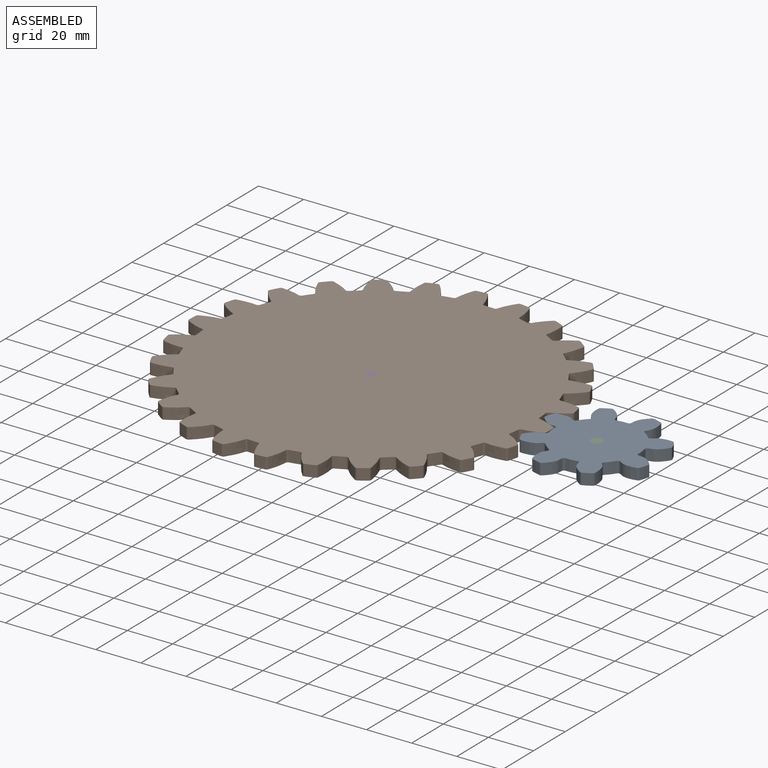
[diagram: assembled view]
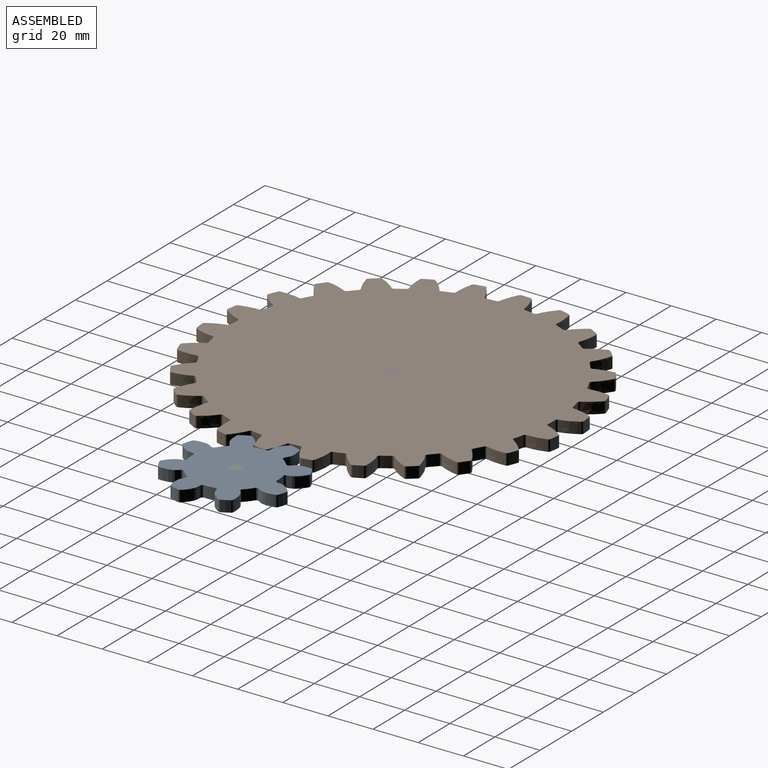
[diagram: assembled view, second angle]
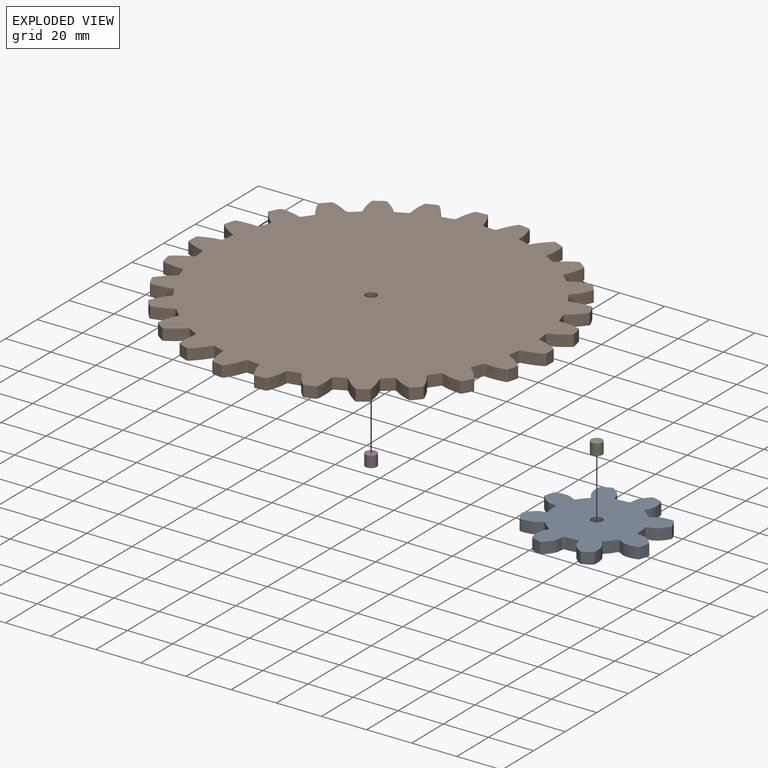
[diagram: exploded view]
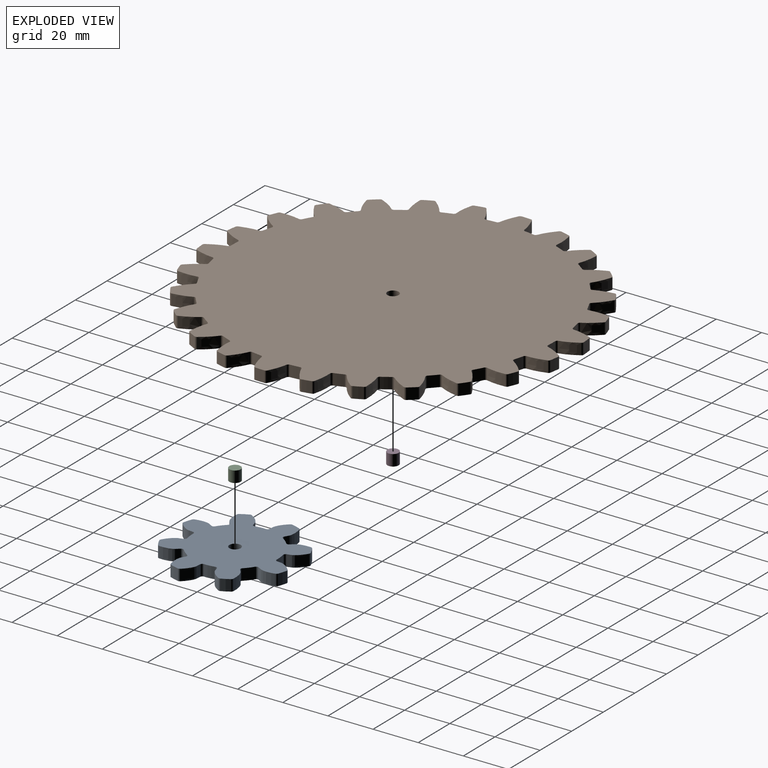
[diagram: exploded view, second angle]
ASSEMBLY  parts=4 mates=2
PART A: 91 faces, bbox 55.6x55.6x5 mm
  f0: plane 5x2.02mm, normal (0.02,1,0), area 10.1mm2, adj f1,f4,f5,f12
  f1: extruded ~5.69x5mm, area 33mm2, adj f0,f4,f5,f11
  f2: plane 5x1.93mm, normal (-0.99,-0.15,0), area 9.8mm2, adj f4,f5,f11,f19
  f3: cylinder r=18.83mm len=5mm, axis (0,0,-1), area 23.7mm2, adj f4,f5,f10,f12
  f4: plane 55.6x55.6mm, normal (0,0,1), area 1704.5mm2, adj f0,f1,f2,f3,f6,f7,f8,f9
  f5: plane 55.6x55.6mm, normal (0,0,-1), area 1704.5mm2, adj f0,f1,f2,f3,f6,f7,f8,f9
  f6: plane 5x1.88mm, normal (-0.36,-0.93,0), area 10.1mm2, adj f4,f5,f7,f10
  f7: extruded ~5.06x5mm, area 33mm2, adj f4,f5,f6,f9
  f8: plane 5x1.67mm, normal (-0.86,0.52,0), area 9.8mm2, adj f4,f5,f9,f81
  f9: cylinder r=1mm len=5mm, axis (0,0,-1), area 4.7mm2, adj f4,f5,f7,f8
  f10: cylinder r=1mm len=5mm, axis (0,0,-1), area 7.6mm2, adj f3,f4,f5,f6
  f11: cylinder r=1mm len=5mm, axis (0,0,-1), area 4.7mm2, adj f1,f2,f4,f5
  f12: cylinder r=1mm len=5mm, axis (0,0,-1), area 7.6mm2, adj f0,f3,f4,f5
  f13: plane 5x1.46mm, normal (-0.69,0.72,0), area 10.1mm2, adj f4,f5,f14,f23
  f14: extruded ~6.22x5mm, area 33mm2, adj f4,f5,f13,f22
  f15: plane 5x1.57mm, normal (-0.59,-0.81,0), area 9.8mm2, adj f4,f5,f22,f30
  f16: cylinder r=18.83mm len=5mm, axis (0,0,-1), area 23.7mm2, adj f4,f5,f21,f23
  f17: plane 5x1.85mm, normal (0.4,-0.92,0), area 10.1mm2, adj f4,f5,f18,f21
  f18: extruded ~6.45x5mm, area 33mm2, adj f4,f5,f17,f20
  f19: plane 5x1.9mm, normal (-0.97,-0.24,0), area 9.8mm2, adj f2,f4,f5,f20
  f20: cylinder r=1mm len=5mm, axis (0,0,-1), area 4.7mm2, adj f4,f5,f18,f19
  f21: cylinder r=1mm len=5mm, axis (0,0,-1), area 7.6mm2, adj f4,f5,f16,f17
  f22: cylinder r=1mm len=5mm, axis (0,0,-1), area 4.7mm2, adj f4,f5,f14,f15
  f23: cylinder r=1mm len=5mm, axis (0,0,-1), area 7.6mm2, adj f4,f5,f13,f16
  f24: plane 5x2.02mm, normal (-1,0.02,0), area 10.1mm2, adj f4,f5,f25,f34
  f25: extruded ~5.69x5mm, area 33mm2, adj f4,f5,f24,f33
  f26: plane 5x1.93mm, normal (0.15,-0.99,0), area 9.8mm2, adj f4,f5,f33,f41
  f27: cylinder r=18.83mm len=5mm, axis (0,0,-1), area 23.7mm2, adj f4,f5,f32,f34
  f28: plane 5x1.88mm, normal (0.93,-0.36,0), area 10.1mm2, adj f4,f5,f29,f32
  f29: extruded ~5.06x5mm, area 33mm2, adj f4,f5,f28,f31
  f30: plane 5x1.67mm, normal (-0.52,-0.86,0), area 9.8mm2, adj f4,f5,f15,f31
  f31: cylinder r=1mm len=5mm, axis (0,0,-1), area 4.7mm2, adj f4,f5,f29,f30
  f32: cylinder r=1mm len=5mm, axis (0,0,-1), area 7.6mm2, adj f4,f5,f27,f28
  f33: cylinder r=1mm len=5mm, axis (0,0,-1), area 4.7mm2, adj f4,f5,f25,f26
  f34: cylinder r=1mm len=5mm, axis (0,0,-1), area 7.6mm2, adj f4,f5,f24,f27
  f35: plane 5x1.46mm, normal (-0.72,-0.69,0), area 10.1mm2, adj f4,f5,f36,f45
  f36: extruded ~6.22x5mm, area 33mm2, adj f4,f5,f35,f44
  f37: plane 5x1.57mm, normal (0.81,-0.59,0), area 9.8mm2, adj f4,f5,f44,f52
  f38: cylinder r=18.83mm len=5mm, axis (0,0,-1), area 23.7mm2, adj f4,f5,f43,f45
  f39: plane 5x1.85mm, normal (0.92,0.4,0), area 10.1mm2, adj f4,f5,f40,f43
  f40: extruded ~6.45x5mm, area 33mm2, adj f4,f5,f39,f42
  f41: plane 5x1.9mm, normal (0.24,-0.97,0), area 9.8mm2, adj f4,f5,f26,f42
  f42: cylinder r=1mm len=5mm, axis (0,0,-1), area 4.7mm2, adj f4,f5,f40,f41
  f43: cylinder r=1mm len=5mm, axis (0,0,-1), area 7.6mm2, adj f4,f5,f38,f39
  f44: cylinder r=1mm len=5mm, axis (0,0,-1), area 4.7mm2, adj f4,f5,f36,f37
  f45: cylinder r=1mm len=5mm, axis (0,0,-1), area 7.6mm2, adj f4,f5,f35,f38
  f46: plane 5x2.02mm, normal (-0.02,-1,0), area 10.1mm2, adj f4,f5,f47,f56
  f47: extruded ~5.69x5mm, area 33mm2, adj f4,f5,f46,f55
  f48: plane 5x1.93mm, normal (0.99,0.15,0), area 9.8mm2, adj f4,f5,f55,f63
  f49: cylinder r=18.83mm len=5mm, axis (0,0,-1), area 23.7mm2, adj f4,f5,f54,f56
  f50: plane 5x1.88mm, normal (0.36,0.93,0), area 10.1mm2, adj f4,f5,f51,f54
  f51: extruded ~5.06x5mm, area 33mm2, adj f4,f5,f50,f53
  f52: plane 5x1.67mm, normal (0.86,-0.52,0), area 9.8mm2, adj f4,f5,f37,f53
  f53: cylinder r=1mm len=5mm, axis (0,0,-1), area 4.7mm2, adj f4,f5,f51,f52
  f54: cylinder r=1mm len=5mm, axis (0,0,-1), area 7.6mm2, adj f4,f5,f49,f50
  f55: cylinder r=1mm len=5mm, axis (0,0,-1), area 4.7mm2, adj f4,f5,f47,f48
  f56: cylinder r=1mm len=5mm, axis (0,0,-1), area 7.6mm2, adj f4,f5,f46,f49
  f57: plane 5x1.46mm, normal (0.69,-0.72,0), area 10.1mm2, adj f4,f5,f58,f67
  f58: extruded ~6.22x5mm, area 33mm2, adj f4,f5,f57,f66
  f59: plane 5x1.57mm, normal (0.59,0.81,0), area 9.8mm2, adj f4,f5,f66,f74
  f60: cylinder r=18.83mm len=5mm, axis (0,0,-1), area 23.7mm2, adj f4,f5,f65,f67
  f61: plane 5x1.85mm, normal (-0.4,0.92,0), area 10.1mm2, adj f4,f5,f62,f65
  f62: extruded ~6.45x5mm, area 33mm2, adj f4,f5,f61,f64
  f63: plane 5x1.9mm, normal (0.97,0.24,0), area 9.8mm2, adj f4,f5,f48,f64
  f64: cylinder r=1mm len=5mm, axis (0,0,-1), area 4.7mm2, adj f4,f5,f62,f63
  f65: cylinder r=1mm len=5mm, axis (0,0,-1), area 7.6mm2, adj f4,f5,f60,f61
  f66: cylinder r=1mm len=5mm, axis (0,0,-1), area 4.7mm2, adj f4,f5,f58,f59
  f67: cylinder r=1mm len=5mm, axis (0,0,-1), area 7.6mm2, adj f4,f5,f57,f60
  f68: plane 5x2.02mm, normal (1,-0.02,0), area 10.1mm2, adj f4,f5,f69,f78
  f69: extruded ~5.69x5mm, area 33mm2, adj f4,f5,f68,f77
  f70: plane 5x1.93mm, normal (-0.15,0.99,0), area 9.8mm2, adj f4,f5,f77,f85
  f71: cylinder r=18.83mm len=5mm, axis (0,0,-1), area 23.7mm2, adj f4,f5,f76,f78
  f72: plane 5x1.88mm, normal (-0.93,0.36,0), area 10.1mm2, adj f4,f5,f73,f76
  f73: extruded ~5.06x5mm, area 33mm2, adj f4,f5,f72,f75
  f74: plane 5x1.67mm, normal (0.52,0.86,0), area 9.8mm2, adj f4,f5,f59,f75
  f75: cylinder r=1mm len=5mm, axis (0,0,-1), area 4.7mm2, adj f4,f5,f73,f74
  f76: cylinder r=1mm len=5mm, axis (0,0,-1), area 7.6mm2, adj f4,f5,f71,f72
  f77: cylinder r=1mm len=5mm, axis (0,0,-1), area 4.7mm2, adj f4,f5,f69,f70
  f78: cylinder r=1mm len=5mm, axis (0,0,-1), area 7.6mm2, adj f4,f5,f68,f71
  f79: plane 5x1.46mm, normal (0.72,0.69,0), area 10.1mm2, adj f4,f5,f80,f89
  f80: extruded ~6.22x5mm, area 33mm2, adj f4,f5,f79,f88
  f81: plane 5x1.57mm, normal (-0.81,0.59,0), area 9.8mm2, adj f4,f5,f8,f88
  f82: cylinder r=18.83mm len=5mm, axis (0,0,-1), area 23.7mm2, adj f4,f5,f87,f89
  f83: plane 5x1.85mm, normal (-0.92,-0.4,0), area 10.1mm2, adj f4,f5,f84,f87
  f84: extruded ~6.45x5mm, area 33mm2, adj f4,f5,f83,f86
  f85: plane 5x1.9mm, normal (-0.24,0.97,0), area 9.8mm2, adj f4,f5,f70,f86
  f86: cylinder r=1mm len=5mm, axis (0,0,-1), area 4.7mm2, adj f4,f5,f84,f85
  f87: cylinder r=1mm len=5mm, axis (0,0,-1), area 7.6mm2, adj f4,f5,f82,f83
  f88: cylinder r=1mm len=5mm, axis (0,0,-1), area 4.7mm2, adj f4,f5,f80,f81
  f89: cylinder r=1mm len=5mm, axis (0,0,-1), area 7.6mm2, adj f4,f5,f79,f82
  f90: cylinder r=2.5mm len=5mm, axis (0,0,-1), area 78.5mm2, adj f4,f5
PART B: 237 faces, bbox 161.8x161.8x5 mm
  f0: plane 5x2.05mm, normal (1,0.04,0), area 10.3mm2, adj f3,f4,f10,f14
  f1: cylinder r=71.77mm len=5mm, axis (0,0,-1), area 21.7mm2, adj f3,f4,f7,f9
  f2: extruded ~7.87x5mm, area 42.5mm2, adj f3,f4,f9,f10
  f3: plane 161.83x161.83mm, normal (0,0,1), area 18316.7mm2, adj f0,f1,f2,f5,f6,f7,f8,f9
  f4: plane 161.83x161.83mm, normal (0,0,-1), area 18316.7mm2, adj f0,f1,f2,f5,f6,f7,f8,f9
  f5: plane 5x2.03mm, normal (0.99,-0.16,0), area 10.3mm2, adj f3,f4,f8,f227
  f6: extruded ~7.44x5mm, area 42.5mm2, adj f3,f4,f7,f8
  f7: cylinder r=1mm len=5mm, axis (0,0,-1), area 6.7mm2, adj f1,f3,f4,f6
  f8: cylinder r=1mm len=5mm, axis (0,0,-1), area 5.5mm2, adj f3,f4,f5,f6
  f9: cylinder r=1mm len=5mm, axis (0,0,-1), area 6.7mm2, adj f1,f2,f3,f4
  f10: cylinder r=1mm len=5mm, axis (0,0,-1), area 5.5mm2, adj f0,f2,f3,f4
  f11: plane 5x1.97mm, normal (0.96,0.28,0), area 10.3mm2, adj f3,f4,f19,f23
  f12: cylinder r=71.77mm len=5mm, axis (0,0,-1), area 21.7mm2, adj f3,f4,f16,f18
  f13: extruded ~6.89x5mm, area 42.5mm2, adj f3,f4,f18,f19
  f14: plane 5x2.05mm, normal (1,0.08,0), area 10.3mm2, adj f0,f3,f4,f17
  f15: extruded ~8.19x5mm, area 42.5mm2, adj f3,f4,f16,f17
  f16: cylinder r=1mm len=5mm, axis (0,0,-1), area 6.7mm2, adj f3,f4,f12,f15
  f17: cylinder r=1mm len=5mm, axis (0,0,-1), area 5.5mm2, adj f3,f4,f14,f15
  f18: cylinder r=1mm len=5mm, axis (0,0,-1), area 6.7mm2, adj f3,f4,f12,f13
  f19: cylinder r=1mm len=5mm, axis (0,0,-1), area 5.5mm2, adj f3,f4,f11,f13
  f20: plane 5x1.78mm, normal (0.86,0.5,0), area 10.3mm2, adj f3,f4,f28,f32
  f21: cylinder r=71.77mm len=5mm, axis (0,0,-1), area 21.7mm2, adj f3,f4,f25,f27
  f22: extruded ~6.44x5.51mm, area 42.5mm2, adj f3,f4,f27,f28
  f23: plane 5x1.95mm, normal (0.95,0.31,0), area 10.3mm2, adj f3,f4,f11,f26
  f24: extruded ~8.47x5mm, area 42.5mm2, adj f3,f4,f25,f26
  f25: cylinder r=1mm len=5mm, axis (0,0,-1), area 6.7mm2, adj f3,f4,f21,f24
  f26: cylinder r=1mm len=5mm, axis (0,0,-1), area 5.5mm2, adj f3,f4,f23,f24
  f27: cylinder r=1mm len=5mm, axis (0,0,-1), area 6.7mm2, adj f3,f4,f21,f22
  f28: cylinder r=1mm len=5mm, axis (0,0,-1), area 5.5mm2, adj f3,f4,f20,f22
  f29: plane 5x1.48mm, normal (0.72,0.7,0), area 10.3mm2, adj f3,f4,f37,f41
  f30: cylinder r=71.77mm len=5mm, axis (0,0,-1), area 21.7mm2, adj f3,f4,f34,f36
  f31: extruded ~7.57x5mm, area 42.5mm2, adj f3,f4,f36,f37
  f32: plane 5x1.74mm, normal (0.85,0.53,0), area 10.3mm2, adj f3,f4,f20,f35
  f33: extruded ~8.26x5mm, area 42.5mm2, adj f3,f4,f34,f35
  f34: cylinder r=1mm len=5mm, axis (0,0,-1), area 6.7mm2, adj f3,f4,f30,f33
  f35: cylinder r=1mm len=5mm, axis (0,0,-1), area 5.5mm2, adj f3,f4,f32,f33
  f36: cylinder r=1mm len=5mm, axis (0,0,-1), area 6.7mm2, adj f3,f4,f30,f31
  f37: cylinder r=1mm len=5mm, axis (0,0,-1), area 5.5mm2, adj f3,f4,f29,f31
  f38: plane 5x1.74mm, normal (0.53,0.85,0), area 10.3mm2, adj f3,f4,f46,f50
  f39: cylinder r=71.77mm len=5mm, axis (0,0,-1), area 21.7mm2, adj f3,f4,f43,f45
  f40: extruded ~8.26x5mm, area 42.5mm2, adj f3,f4,f45,f46
  f41: plane 5x1.48mm, normal (0.7,0.72,0), area 10.3mm2, adj f3,f4,f29,f44
  f42: extruded ~7.57x5mm, area 42.5mm2, adj f3,f4,f43,f44
  f43: cylinder r=1mm len=5mm, axis (0,0,-1), area 6.7mm2, adj f3,f4,f39,f42
  f44: cylinder r=1mm len=5mm, axis (0,0,-1), area 5.5mm2, adj f3,f4,f41,f42
  f45: cylinder r=1mm len=5mm, axis (0,0,-1), area 6.7mm2, adj f3,f4,f39,f40
  f46: cylinder r=1mm len=5mm, axis (0,0,-1), area 5.5mm2, adj f3,f4,f38,f40
  f47: plane 5x1.95mm, normal (0.31,0.95,0), area 10.3mm2, adj f3,f4,f55,f59
  f48: cylinder r=71.77mm len=5mm, axis (0,0,-1), area 21.7mm2, adj f3,f4,f52,f54
  f49: extruded ~8.47x5mm, area 42.5mm2, adj f3,f4,f54,f55
  f50: plane 5x1.78mm, normal (0.5,0.86,0), area 10.3mm2, adj f3,f4,f38,f53
  f51: extruded ~6.44x5.51mm, area 42.5mm2, adj f3,f4,f52,f53
  f52: cylinder r=1mm len=5mm, axis (0,0,-1), area 6.7mm2, adj f3,f4,f48,f51
  f53: cylinder r=1mm len=5mm, axis (0,0,-1), area 5.5mm2, adj f3,f4,f50,f51
  f54: cylinder r=1mm len=5mm, axis (0,0,-1), area 6.7mm2, adj f3,f4,f48,f49
  f55: cylinder r=1mm len=5mm, axis (0,0,-1), area 5.5mm2, adj f3,f4,f47,f49
  f56: plane 5x2.05mm, normal (0.08,1,0), area 10.3mm2, adj f3,f4,f64,f68
  f57: cylinder r=71.77mm len=5mm, axis (0,0,-1), area 21.7mm2, adj f3,f4,f61,f63
  f58: extruded ~8.19x5mm, area 42.5mm2, adj f3,f4,f63,f64
  f59: plane 5x1.97mm, normal (0.28,0.96,0), area 10.3mm2, adj f3,f4,f47,f62
  f60: extruded ~6.89x5mm, area 42.5mm2, adj f3,f4,f61,f62
  f61: cylinder r=1mm len=5mm, axis (0,0,-1), area 6.7mm2, adj f3,f4,f57,f60
  f62: cylinder r=1mm len=5mm, axis (0,0,-1), area 5.5mm2, adj f3,f4,f59,f60
  f63: cylinder r=1mm len=5mm, axis (0,0,-1), area 6.7mm2, adj f3,f4,f57,f58
  f64: cylinder r=1mm len=5mm, axis (0,0,-1), area 5.5mm2, adj f3,f4,f56,f58
  f65: plane 5x2.03mm, normal (-0.16,0.99,0), area 10.3mm2, adj f3,f4,f73,f77
  f66: cylinder r=71.77mm len=5mm, axis (0,0,-1), area 21.7mm2, adj f3,f4,f70,f72
  f67: extruded ~7.44x5mm, area 42.5mm2, adj f3,f4,f72,f73
  f68: plane 5x2.05mm, normal (0.04,1,0), area 10.3mm2, adj f3,f4,f56,f71
  f69: extruded ~7.87x5mm, area 42.5mm2, adj f3,f4,f70,f71
  f70: cylinder r=1mm len=5mm, axis (0,0,-1), area 6.7mm2, adj f3,f4,f66,f69
  f71: cylinder r=1mm len=5mm, axis (0,0,-1), area 5.5mm2, adj f3,f4,f68,f69
  f72: cylinder r=1mm len=5mm, axis (0,0,-1), area 6.7mm2, adj f3,f4,f66,f67
  f73: cylinder r=1mm len=5mm, axis (0,0,-1), area 5.5mm2, adj f3,f4,f65,f67
  f74: plane 5x1.89mm, normal (-0.4,0.92,0), area 10.3mm2, adj f3,f4,f82,f86
  f75: cylinder r=71.77mm len=5mm, axis (0,0,-1), area 21.7mm2, adj f3,f4,f79,f81
  f76: extruded ~6.25x5.73mm, area 42.5mm2, adj f3,f4,f81,f82
  f77: plane 5x2.02mm, normal (-0.2,0.98,0), area 10.3mm2, adj f3,f4,f65,f80
  f78: extruded ~8.4x5mm, area 42.5mm2, adj f3,f4,f79,f80
  f79: cylinder r=1mm len=5mm, axis (0,0,-1), area 6.7mm2, adj f3,f4,f75,f78
  f80: cylinder r=1mm len=5mm, axis (0,0,-1), area 5.5mm2, adj f3,f4,f77,f78
  f81: cylinder r=1mm len=5mm, axis (0,0,-1), area 6.7mm2, adj f3,f4,f75,f76
  f82: cylinder r=1mm len=5mm, axis (0,0,-1), area 5.5mm2, adj f3,f4,f74,f76
  f83: plane 5x1.64mm, normal (-0.6,0.8,0), area 10.3mm2, adj f3,f4,f91,f95
  f84: cylinder r=71.77mm len=5mm, axis (0,0,-1), area 21.7mm2, adj f3,f4,f88,f90
  f85: extruded ~7.06x5mm, area 42.5mm2, adj f3,f4,f90,f91
  f86: plane 5x1.86mm, normal (-0.43,0.91,0), area 10.3mm2, adj f3,f4,f74,f89
  f87: extruded ~8.43x5mm, area 42.5mm2, adj f3,f4,f88,f89
  f88: cylinder r=1mm len=5mm, axis (0,0,-1), area 6.7mm2, adj f3,f4,f84,f87
  f89: cylinder r=1mm len=5mm, axis (0,0,-1), area 5.5mm2, adj f3,f4,f86,f87
  f90: cylinder r=1mm len=5mm, axis (0,0,-1), area 6.7mm2, adj f3,f4,f84,f85
  f91: cylinder r=1mm len=5mm, axis (0,0,-1), area 5.5mm2, adj f3,f4,f83,f85
  f92: plane 5x1.6mm, normal (-0.78,0.63,0), area 10.3mm2, adj f3,f4,f100,f104
  f93: cylinder r=71.77mm len=5mm, axis (0,0,-1), area 21.7mm2, adj f3,f4,f97,f99
  f94: extruded ~7.97x5mm, area 42.5mm2, adj f3,f4,f99,f100
  f95: plane 5x1.6mm, normal (-0.63,0.78,0), area 10.3mm2, adj f3,f4,f83,f98
  f96: extruded ~7.97x5mm, area 42.5mm2, adj f3,f4,f97,f98
  f97: cylinder r=1mm len=5mm, axis (0,0,-1), area 6.7mm2, adj f3,f4,f93,f96
  f98: cylinder r=1mm len=5mm, axis (0,0,-1), area 5.5mm2, adj f3,f4,f95,f96
  f99: cylinder r=1mm len=5mm, axis (0,0,-1), area 6.7mm2, adj f3,f4,f93,f94
  f100: cylinder r=1mm len=5mm, axis (0,0,-1), area 5.5mm2, adj f3,f4,f92,f94
  f101: plane 5x1.86mm, normal (-0.91,0.43,0), area 10.3mm2, adj f3,f4,f109,f113
  f102: cylinder r=71.77mm len=5mm, axis (0,0,-1), area 21.7mm2, adj f3,f4,f106,f108
  f103: extruded ~8.43x5mm, area 42.5mm2, adj f3,f4,f108,f109
  f104: plane 5x1.64mm, normal (-0.8,0.6,0), area 10.3mm2, adj f3,f4,f92,f107
  f105: extruded ~7.06x5mm, area 42.5mm2, adj f3,f4,f106,f107
  f106: cylinder r=1mm len=5mm, axis (0,0,-1), area 6.7mm2, adj f3,f4,f102,f105
  f107: cylinder r=1mm len=5mm, axis (0,0,-1), area 5.5mm2, adj f3,f4,f104,f105
  f108: cylinder r=1mm len=5mm, axis (0,0,-1), area 6.7mm2, adj f3,f4,f102,f103
  f109: cylinder r=1mm len=5mm, axis (0,0,-1), area 5.5mm2, adj f3,f4,f101,f103
  f110: plane 5x2.02mm, normal (-0.98,0.2,0), area 10.3mm2, adj f3,f4,f118,f122
  f111: cylinder r=71.77mm len=5mm, axis (0,0,-1), area 21.7mm2, adj f3,f4,f115,f117
  f112: extruded ~8.4x5mm, area 42.5mm2, adj f3,f4,f117,f118
  f113: plane 5x1.89mm, normal (-0.92,0.4,0), area 10.3mm2, adj f3,f4,f101,f116
  f114: extruded ~6.25x5.73mm, area 42.5mm2, adj f3,f4,f115,f116
  f115: cylinder r=1mm len=5mm, axis (0,0,-1), area 6.7mm2, adj f3,f4,f111,f114
  f116: cylinder r=1mm len=5mm, axis (0,0,-1), area 5.5mm2, adj f3,f4,f113,f114
  f117: cylinder r=1mm len=5mm, axis (0,0,-1), area 6.7mm2, adj f3,f4,f111,f112
  f118: cylinder r=1mm len=5mm, axis (0,0,-1), area 5.5mm2, adj f3,f4,f110,f112
  f119: plane 5x2.05mm, normal (-1,-0.04,0), area 10.3mm2, adj f3,f4,f127,f131
  f120: cylinder r=71.77mm len=5mm, axis (0,0,-1), area 21.7mm2, adj f3,f4,f124,f126
  f121: extruded ~7.87x5mm, area 42.5mm2, adj f3,f4,f126,f127
  f122: plane 5x2.03mm, normal (-0.99,0.16,0), area 10.3mm2, adj f3,f4,f110,f125
  f123: extruded ~7.44x5mm, area 42.5mm2, adj f3,f4,f124,f125
  f124: cylinder r=1mm len=5mm, axis (0,0,-1), area 6.7mm2, adj f3,f4,f120,f123
  f125: cylinder r=1mm len=5mm, axis (0,0,-1), area 5.5mm2, adj f3,f4,f122,f123
  f126: cylinder r=1mm len=5mm, axis (0,0,-1), area 6.7mm2, adj f3,f4,f120,f121
  f127: cylinder r=1mm len=5mm, axis (0,0,-1), area 5.5mm2, adj f3,f4,f119,f121
  f128: plane 5x1.97mm, normal (-0.96,-0.28,0), area 10.3mm2, adj f3,f4,f136,f140
  f129: cylinder r=71.77mm len=5mm, axis (0,0,-1), area 21.7mm2, adj f3,f4,f133,f135
  f130: extruded ~6.89x5mm, area 42.5mm2, adj f3,f4,f135,f136
  f131: plane 5x2.05mm, normal (-1,-0.08,0), area 10.3mm2, adj f3,f4,f119,f134
  f132: extruded ~8.19x5mm, area 42.5mm2, adj f3,f4,f133,f134
  f133: cylinder r=1mm len=5mm, axis (0,0,-1), area 6.7mm2, adj f3,f4,f129,f132
  f134: cylinder r=1mm len=5mm, axis (0,0,-1), area 5.5mm2, adj f3,f4,f131,f132
  f135: cylinder r=1mm len=5mm, axis (0,0,-1), area 6.7mm2, adj f3,f4,f129,f130
  f136: cylinder r=1mm len=5mm, axis (0,0,-1), area 5.5mm2, adj f3,f4,f128,f130
  f137: plane 5x1.78mm, normal (-0.86,-0.5,0), area 10.3mm2, adj f3,f4,f145,f149
  f138: cylinder r=71.77mm len=5mm, axis (0,0,-1), area 21.7mm2, adj f3,f4,f142,f144
  f139: extruded ~6.44x5.51mm, area 42.5mm2, adj f3,f4,f144,f145
  f140: plane 5x1.95mm, normal (-0.95,-0.31,0), area 10.3mm2, adj f3,f4,f128,f143
  f141: extruded ~8.47x5mm, area 42.5mm2, adj f3,f4,f142,f143
  f142: cylinder r=1mm len=5mm, axis (0,0,-1), area 6.7mm2, adj f3,f4,f138,f141
  f143: cylinder r=1mm len=5mm, axis (0,0,-1), area 5.5mm2, adj f3,f4,f140,f141
  f144: cylinder r=1mm len=5mm, axis (0,0,-1), area 6.7mm2, adj f3,f4,f138,f139
  f145: cylinder r=1mm len=5mm, axis (0,0,-1), area 5.5mm2, adj f3,f4,f137,f139
  f146: plane 5x1.48mm, normal (-0.72,-0.7,0), area 10.3mm2, adj f3,f4,f154,f158
  f147: cylinder r=71.77mm len=5mm, axis (0,0,-1), area 21.7mm2, adj f3,f4,f151,f153
  f148: extruded ~7.57x5mm, area 42.5mm2, adj f3,f4,f153,f154
  f149: plane 5x1.74mm, normal (-0.85,-0.53,0), area 10.3mm2, adj f3,f4,f137,f152
  f150: extruded ~8.26x5mm, area 42.5mm2, adj f3,f4,f151,f152
  f151: cylinder r=1mm len=5mm, axis (0,0,-1), area 6.7mm2, adj f3,f4,f147,f150
  f152: cylinder r=1mm len=5mm, axis (0,0,-1), area 5.5mm2, adj f3,f4,f149,f150
  f153: cylinder r=1mm len=5mm, axis (0,0,-1), area 6.7mm2, adj f3,f4,f147,f148
  f154: cylinder r=1mm len=5mm, axis (0,0,-1), area 5.5mm2, adj f3,f4,f146,f148
  f155: plane 5x1.74mm, normal (-0.53,-0.85,0), area 10.3mm2, adj f3,f4,f163,f167
  f156: cylinder r=71.77mm len=5mm, axis (0,0,-1), area 21.7mm2, adj f3,f4,f160,f162
  f157: extruded ~8.26x5mm, area 42.5mm2, adj f3,f4,f162,f163
  f158: plane 5x1.48mm, normal (-0.7,-0.72,0), area 10.3mm2, adj f3,f4,f146,f161
  f159: extruded ~7.57x5mm, area 42.5mm2, adj f3,f4,f160,f161
  f160: cylinder r=1mm len=5mm, axis (0,0,-1), area 6.7mm2, adj f3,f4,f156,f159
  f161: cylinder r=1mm len=5mm, axis (0,0,-1), area 5.5mm2, adj f3,f4,f158,f159
  f162: cylinder r=1mm len=5mm, axis (0,0,-1), area 6.7mm2, adj f3,f4,f156,f157
  f163: cylinder r=1mm len=5mm, axis (0,0,-1), area 5.5mm2, adj f3,f4,f155,f157
  f164: plane 5x1.95mm, normal (-0.31,-0.95,0), area 10.3mm2, adj f3,f4,f172,f176
  f165: cylinder r=71.77mm len=5mm, axis (0,0,-1), area 21.7mm2, adj f3,f4,f169,f171
  f166: extruded ~8.47x5mm, area 42.5mm2, adj f3,f4,f171,f172
  f167: plane 5x1.78mm, normal (-0.5,-0.86,0), area 10.3mm2, adj f3,f4,f155,f170
  f168: extruded ~6.44x5.51mm, area 42.5mm2, adj f3,f4,f169,f170
  f169: cylinder r=1mm len=5mm, axis (0,0,-1), area 6.7mm2, adj f3,f4,f165,f168
  f170: cylinder r=1mm len=5mm, axis (0,0,-1), area 5.5mm2, adj f3,f4,f167,f168
  f171: cylinder r=1mm len=5mm, axis (0,0,-1), area 6.7mm2, adj f3,f4,f165,f166
  f172: cylinder r=1mm len=5mm, axis (0,0,-1), area 5.5mm2, adj f3,f4,f164,f166
  f173: plane 5x2.05mm, normal (-0.08,-1,0), area 10.3mm2, adj f3,f4,f181,f185
  f174: cylinder r=71.77mm len=5mm, axis (0,0,-1), area 21.7mm2, adj f3,f4,f178,f180
  f175: extruded ~8.19x5mm, area 42.5mm2, adj f3,f4,f180,f181
  f176: plane 5x1.97mm, normal (-0.28,-0.96,0), area 10.3mm2, adj f3,f4,f164,f179
  f177: extruded ~6.89x5mm, area 42.5mm2, adj f3,f4,f178,f179
  f178: cylinder r=1mm len=5mm, axis (0,0,-1), area 6.7mm2, adj f3,f4,f174,f177
  f179: cylinder r=1mm len=5mm, axis (0,0,-1), area 5.5mm2, adj f3,f4,f176,f177
  f180: cylinder r=1mm len=5mm, axis (0,0,-1), area 6.7mm2, adj f3,f4,f174,f175
  f181: cylinder r=1mm len=5mm, axis (0,0,-1), area 5.5mm2, adj f3,f4,f173,f175
  f182: plane 5x2.03mm, normal (0.16,-0.99,0), area 10.3mm2, adj f3,f4,f190,f194
  f183: cylinder r=71.77mm len=5mm, axis (0,0,-1), area 21.7mm2, adj f3,f4,f187,f189
  f184: extruded ~7.44x5mm, area 42.5mm2, adj f3,f4,f189,f190
  f185: plane 5x2.05mm, normal (-0.04,-1,0), area 10.3mm2, adj f3,f4,f173,f188
  f186: extruded ~7.87x5mm, area 42.5mm2, adj f3,f4,f187,f188
  f187: cylinder r=1mm len=5mm, axis (0,0,-1), area 6.7mm2, adj f3,f4,f183,f186
  f188: cylinder r=1mm len=5mm, axis (0,0,-1), area 5.5mm2, adj f3,f4,f185,f186
  f189: cylinder r=1mm len=5mm, axis (0,0,-1), area 6.7mm2, adj f3,f4,f183,f184
  f190: cylinder r=1mm len=5mm, axis (0,0,-1), area 5.5mm2, adj f3,f4,f182,f184
  f191: plane 5x1.89mm, normal (0.4,-0.92,0), area 10.3mm2, adj f3,f4,f199,f203
  f192: cylinder r=71.77mm len=5mm, axis (0,0,-1), area 21.7mm2, adj f3,f4,f196,f198
  f193: extruded ~6.25x5.73mm, area 42.5mm2, adj f3,f4,f198,f199
  f194: plane 5x2.02mm, normal (0.2,-0.98,0), area 10.3mm2, adj f3,f4,f182,f197
  f195: extruded ~8.4x5mm, area 42.5mm2, adj f3,f4,f196,f197
  f196: cylinder r=1mm len=5mm, axis (0,0,-1), area 6.7mm2, adj f3,f4,f192,f195
  f197: cylinder r=1mm len=5mm, axis (0,0,-1), area 5.5mm2, adj f3,f4,f194,f195
  f198: cylinder r=1mm len=5mm, axis (0,0,-1), area 6.7mm2, adj f3,f4,f192,f193
  f199: cylinder r=1mm len=5mm, axis (0,0,-1), area 5.5mm2, adj f3,f4,f191,f193
  f200: plane 5x1.64mm, normal (0.6,-0.8,0), area 10.3mm2, adj f3,f4,f208,f212
  f201: cylinder r=71.77mm len=5mm, axis (0,0,-1), area 21.7mm2, adj f3,f4,f205,f207
  f202: extruded ~7.06x5mm, area 42.5mm2, adj f3,f4,f207,f208
  f203: plane 5x1.86mm, normal (0.43,-0.91,0), area 10.3mm2, adj f3,f4,f191,f206
  f204: extruded ~8.43x5mm, area 42.5mm2, adj f3,f4,f205,f206
  f205: cylinder r=1mm len=5mm, axis (0,0,-1), area 6.7mm2, adj f3,f4,f201,f204
  f206: cylinder r=1mm len=5mm, axis (0,0,-1), area 5.5mm2, adj f3,f4,f203,f204
  f207: cylinder r=1mm len=5mm, axis (0,0,-1), area 6.7mm2, adj f3,f4,f201,f202
  f208: cylinder r=1mm len=5mm, axis (0,0,-1), area 5.5mm2, adj f3,f4,f200,f202
  f209: plane 5x1.6mm, normal (0.78,-0.63,0), area 10.3mm2, adj f3,f4,f217,f221
  f210: cylinder r=71.77mm len=5mm, axis (0,0,-1), area 21.7mm2, adj f3,f4,f214,f216
  f211: extruded ~7.97x5mm, area 42.5mm2, adj f3,f4,f216,f217
  f212: plane 5x1.6mm, normal (0.63,-0.78,0), area 10.3mm2, adj f3,f4,f200,f215
  f213: extruded ~7.97x5mm, area 42.5mm2, adj f3,f4,f214,f215
  f214: cylinder r=1mm len=5mm, axis (0,0,-1), area 6.7mm2, adj f3,f4,f210,f213
  f215: cylinder r=1mm len=5mm, axis (0,0,-1), area 5.5mm2, adj f3,f4,f212,f213
  f216: cylinder r=1mm len=5mm, axis (0,0,-1), area 6.7mm2, adj f3,f4,f210,f211
  f217: cylinder r=1mm len=5mm, axis (0,0,-1), area 5.5mm2, adj f3,f4,f209,f211
  f218: plane 5x1.86mm, normal (0.91,-0.43,0), area 10.3mm2, adj f3,f4,f226,f230
  f219: cylinder r=71.77mm len=5mm, axis (0,0,-1), area 21.7mm2, adj f3,f4,f223,f225
  f220: extruded ~8.43x5mm, area 42.5mm2, adj f3,f4,f225,f226
  f221: plane 5x1.64mm, normal (0.8,-0.6,0), area 10.3mm2, adj f3,f4,f209,f224
  f222: extruded ~7.06x5mm, area 42.5mm2, adj f3,f4,f223,f224
  f223: cylinder r=1mm len=5mm, axis (0,0,-1), area 6.7mm2, adj f3,f4,f219,f222
  f224: cylinder r=1mm len=5mm, axis (0,0,-1), area 5.5mm2, adj f3,f4,f221,f222
  f225: cylinder r=1mm len=5mm, axis (0,0,-1), area 6.7mm2, adj f3,f4,f219,f220
  f226: cylinder r=1mm len=5mm, axis (0,0,-1), area 5.5mm2, adj f3,f4,f218,f220
  f227: plane 5x2.02mm, normal (0.98,-0.2,0), area 10.3mm2, adj f3,f4,f5,f235
  f228: cylinder r=71.77mm len=5mm, axis (0,0,-1), area 21.7mm2, adj f3,f4,f232,f234
  f229: extruded ~8.4x5mm, area 42.5mm2, adj f3,f4,f234,f235
  f230: plane 5x1.89mm, normal (0.92,-0.4,0), area 10.3mm2, adj f3,f4,f218,f233
  f231: extruded ~6.25x5.73mm, area 42.5mm2, adj f3,f4,f232,f233
  f232: cylinder r=1mm len=5mm, axis (0,0,-1), area 6.7mm2, adj f3,f4,f228,f231
  f233: cylinder r=1mm len=5mm, axis (0,0,-1), area 5.5mm2, adj f3,f4,f230,f231
  f234: cylinder r=1mm len=5mm, axis (0,0,-1), area 6.7mm2, adj f3,f4,f228,f229
  f235: cylinder r=1mm len=5mm, axis (0,0,-1), area 5.5mm2, adj f3,f4,f227,f229
  f236: cylinder r=2.5mm len=5mm, axis (0,0,-1), area 78.5mm2, adj f3,f4
PART C: 3 faces, bbox 5x5x5 mm
  f0: cylinder r=2.5mm len=5mm, axis (0,0,-1), area 78.5mm2, adj f1,f2
  f1: plane 5x5mm, normal (0,0,1), area 19.6mm2, adj f0
  f2: plane 5x5mm, normal (0,0,-1), area 19.6mm2, adj f0
PART D: 3 faces, bbox 5x5x5 mm
  f0: cylinder r=2.5mm len=5mm, axis (0,0,-1), area 78.5mm2, adj f1,f2
  f1: plane 5x5mm, normal (0,0,1), area 19.6mm2, adj f0
  f2: plane 5x5mm, normal (0,0,-1), area 19.6mm2, adj f0
PLACE A rot(axis=(0,0,1),151.7deg) t=(255.7,-64.42,0)mm
PLACE B rot(axis=(0,0,-1),46.7deg) t=(11.29,26.17,0)mm
PLACE C at identity fixed
PLACE D at identity fixed
MATE revolute B.f111 <-> D.f0  axis (0,0,-1) through (35.97,0,0)mm
MATE revolute C.f0 <-> A.f3  axis (0,0,-1) through (135.97,0,0)mm
